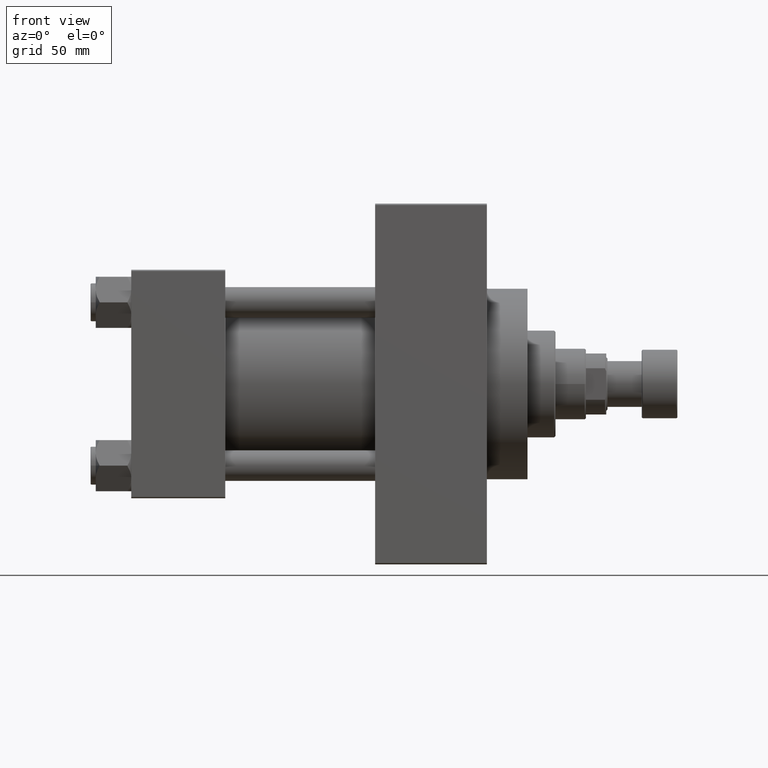
[diagram: clean part render]
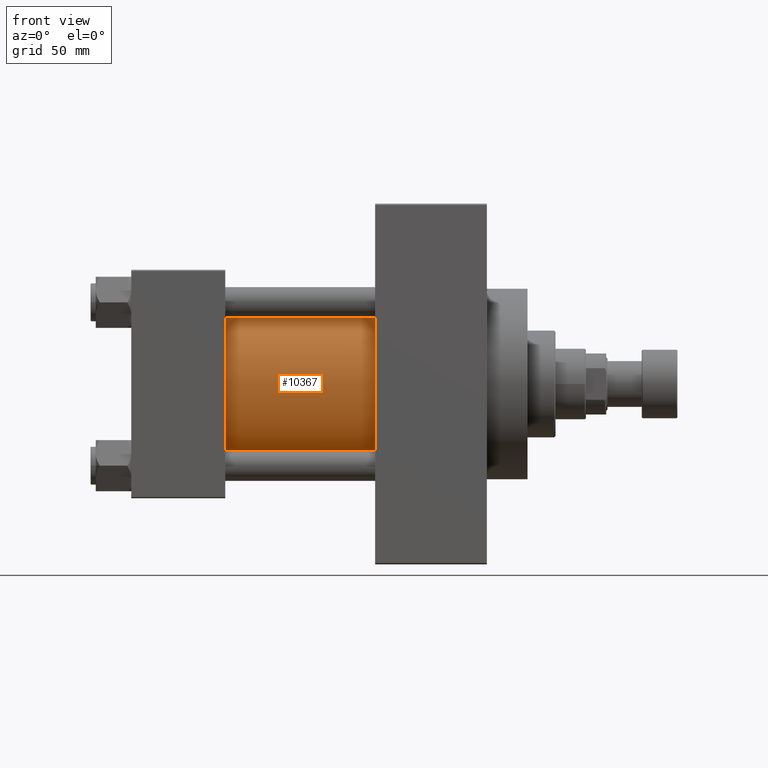
[diagram: same view with one face highlighted and labeled with its STEP entity id]
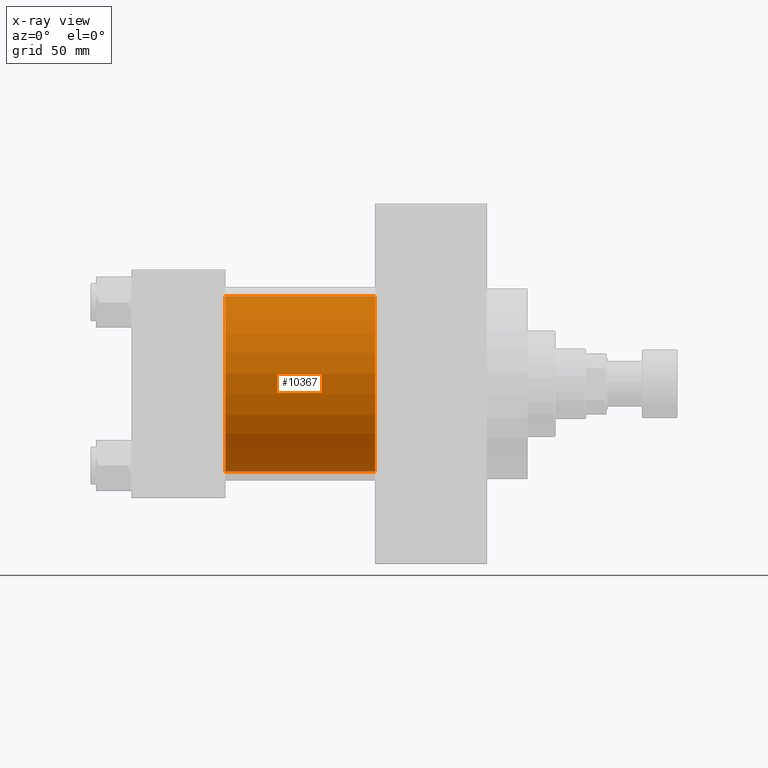
[diagram: x-ray of the same camera — body ghosted, the highlighted face saturated]
A machine part, front view. The second image highlights one B-rep face of the part: STEP entity #10367.
The next image is the same camera in x-ray: the body ghosted, the highlighted face saturated — about 2% of this face is hidden behind the body in this view.
In plain terms, the highlighted cylindrical surface (partial cylindrical patch) has radius 34.5 mm, axis along (-1, -0, -0).
Its self-contained STEP definition (entity closure, byte-faithful):
#1201 = DIRECTION ( 'NONE',  ( 0.000000000000000000, 0.000000000000000000, 1.000000000000000000 ) ) ;
#3416 = CARTESIAN_POINT ( 'NONE',  ( 96.00000000000000000, 1.622946243093158675E-15, -34.50000000000000000 ) ) ;
#4813 = CARTESIAN_POINT ( 'NONE',  ( 96.00000000000000000, -2.602085213965210642E-15, 0.000000000000000000 ) ) ;
#5311 = DIRECTION ( 'NONE',  ( 1.000000000000000000, 0.000000000000000000, 0.000000000000000000 ) ) ;
#6841 = EDGE_CURVE ( 'NONE', #37446, #43290, #18630, .T. ) ;
#7364 = VECTOR ( 'NONE', #20507, 1000.000000000000000 ) ;
#10024 = EDGE_LOOP ( 'NONE', ( #40338, #14852, #14247, #41140 ) ) ;
#10367 = ADVANCED_FACE ( 'NONE', ( #38972 ), #31158, .T. ) ;
#10766 = EDGE_CURVE ( 'NONE', #35579, #41488, #38928, .T. ) ;
#11097 = CARTESIAN_POINT ( 'NONE',  ( 37.00000000000000000, 1.622946243093158675E-15, -34.50000000000000000 ) ) ;
#11585 = CARTESIAN_POINT ( 'NONE',  ( 96.00000000000000000, 1.622946243093158675E-15, -34.50000000000000000 ) ) ;
#12029 = DIRECTION ( 'NONE',  ( -1.000000000000000000, -0.000000000000000000, -0.000000000000000000 ) ) ;
#14247 = ORIENTED_EDGE ( 'NONE', *, *, #29620, .T. ) ;
#14852 = ORIENTED_EDGE ( 'NONE', *, *, #10766, .F. ) ;
#17728 = DIRECTION ( 'NONE',  ( 0.000000000000000000, 0.000000000000000000, 1.000000000000000000 ) ) ;
#18630 = CIRCLE ( 'NONE', #32323, 34.50000000000000000 ) ;
#18768 = EDGE_CURVE ( 'NONE', #41488, #43290, #33594, .T. ) ;
#20141 = DIRECTION ( 'NONE',  ( 0.000000000000000000, 0.000000000000000000, -1.000000000000000000 ) ) ;
#20255 = LINE ( 'NONE', #39878, #7364 ) ;
#20507 = DIRECTION ( 'NONE',  ( -1.000000000000000000, -0.000000000000000000, -0.000000000000000000 ) ) ;
#27018 = VECTOR ( 'NONE', #29826, 1000.000000000000000 ) ;
#28832 = CARTESIAN_POINT ( 'NONE',  ( 37.00000000000000000, -2.602085213965210642E-15, 0.000000000000000000 ) ) ;
#28845 = CARTESIAN_POINT ( 'NONE',  ( 96.00000000000000000, -2.602085213965210642E-15, 34.50000000000000000 ) ) ;
#29088 = DIRECTION ( 'NONE',  ( 1.000000000000000000, -0.000000000000000000, 0.000000000000000000 ) ) ;
#29620 = EDGE_CURVE ( 'NONE', #35579, #37446, #20255, .T. ) ;
#29826 = DIRECTION ( 'NONE',  ( -1.000000000000000000, -0.000000000000000000, -0.000000000000000000 ) ) ;
#31158 = CYLINDRICAL_SURFACE ( 'NONE', #46948, 34.50000000000000000 ) ;
#31482 = CARTESIAN_POINT ( 'NONE',  ( 37.00000000000000000, -2.602085213965210642E-15, 34.50000000000000000 ) ) ;
#32323 = AXIS2_PLACEMENT_3D ( 'NONE', #28832, #29088, #17728 ) ;
#33594 = LINE ( 'NONE', #3416, #27018 ) ;
#35579 = VERTEX_POINT ( 'NONE', #28845 ) ;
#37446 = VERTEX_POINT ( 'NONE', #31482 ) ;
#38928 = CIRCLE ( 'NONE', #48517, 34.50000000000000000 ) ;
#38972 = FACE_OUTER_BOUND ( 'NONE', #10024, .T. ) ;
#39878 = CARTESIAN_POINT ( 'NONE',  ( 96.00000000000000000, -2.602085213965210642E-15, 34.50000000000000000 ) ) ;
#40338 = ORIENTED_EDGE ( 'NONE', *, *, #18768, .F. ) ;
#41140 = ORIENTED_EDGE ( 'NONE', *, *, #6841, .T. ) ;
#41488 = VERTEX_POINT ( 'NONE', #11585 ) ;
#43290 = VERTEX_POINT ( 'NONE', #11097 ) ;
#46492 = CARTESIAN_POINT ( 'NONE',  ( 96.00000000000000000, -2.602085213965210642E-15, 0.000000000000000000 ) ) ;
#46948 = AXIS2_PLACEMENT_3D ( 'NONE', #46492, #12029, #1201 ) ;
#48517 = AXIS2_PLACEMENT_3D ( 'NONE', #4813, #5311, #20141 ) ;